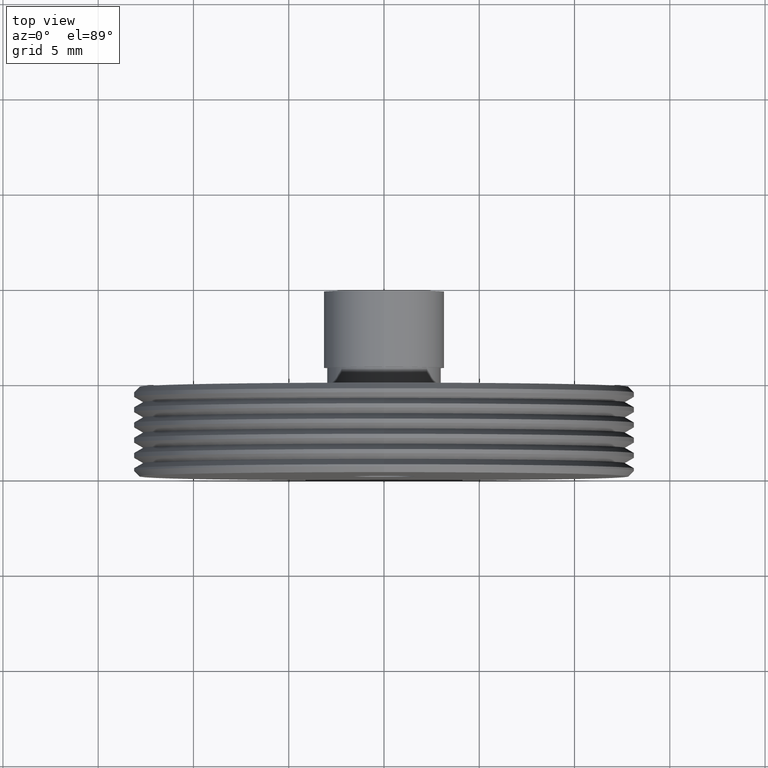
[diagram: clean part render]
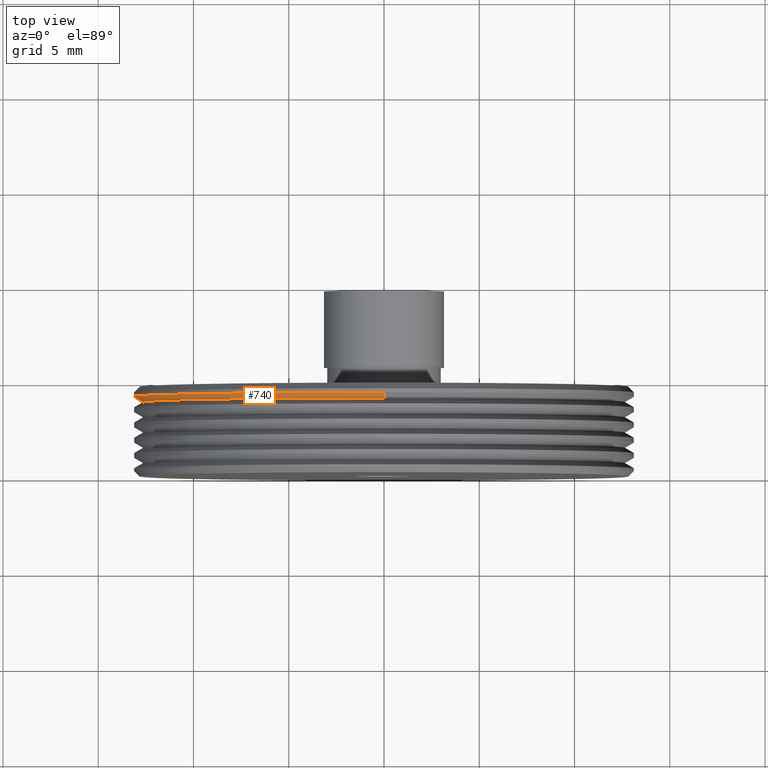
[diagram: same view with one face highlighted and labeled with its STEP entity id]
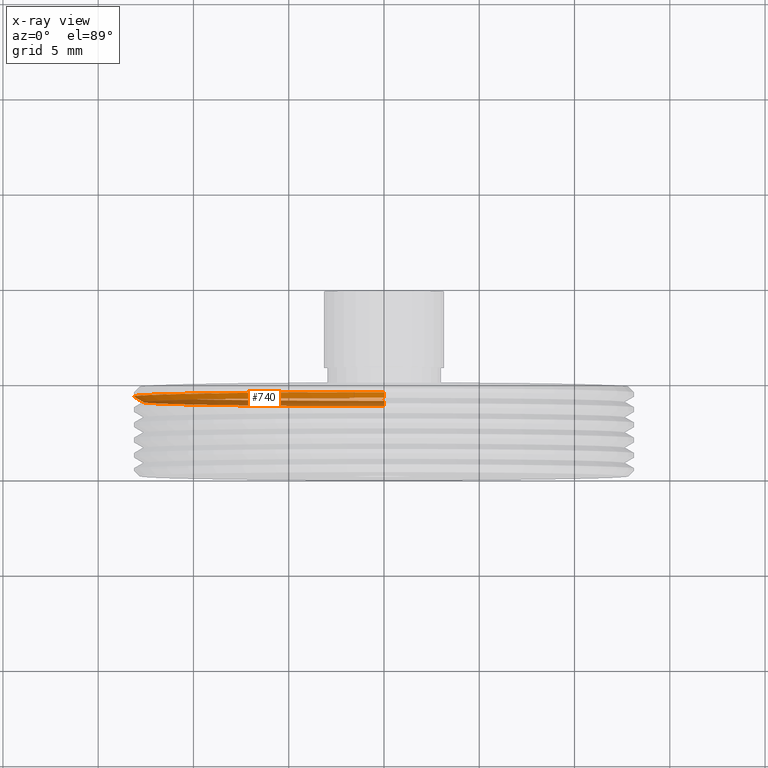
[diagram: x-ray of the same camera — body ghosted, the highlighted face saturated]
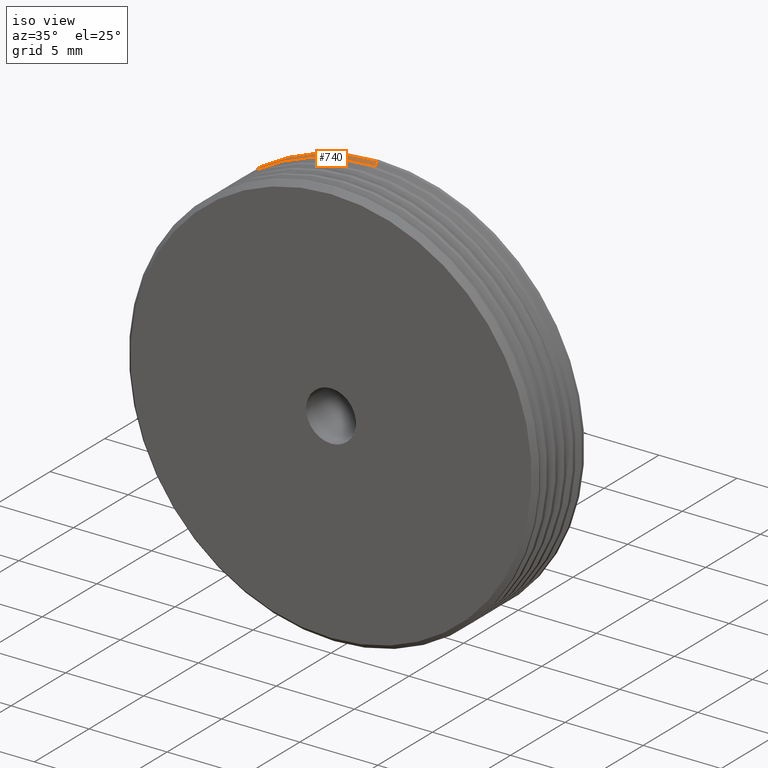
[diagram: same view with one face highlighted and labeled with its STEP entity id]
A machine part, top view. The second image highlights one B-rep face of the part: STEP entity #740.
The next image is the same camera in x-ray: the body ghosted, the highlighted face saturated — about 45% of this face is hidden behind the body in this view.
A second angle (iso view) of the same face is appended — the face is thin or edge-on in the first view.
In plain terms, the highlighted conical surface has half-angle 60 deg.
Its self-contained STEP definition (entity closure, byte-faithful):
#40 = VERTEX_POINT ( 'NONE', #1150 ) ;
#47 = VERTEX_POINT ( 'NONE', #185 ) ;
#71 = VERTEX_POINT ( 'NONE', #672 ) ;
#95 = CIRCLE ( 'NONE', #658, 13.15000000000000568 ) ;
#96 = CARTESIAN_POINT ( 'NONE',  ( 1.732875220793505462E-15, 4.766025403784441394, -14.15000000000000391 ) ) ;
#113 = LINE ( 'NONE', #96, #120 ) ;
#120 = VECTOR ( 'NONE', #394, 1000.000000000000000 ) ;
#155 = DIRECTION ( 'NONE',  ( 0.000000000000000000, -1.000000000000000000, 0.000000000000000000 ) ) ;
#185 = CARTESIAN_POINT ( 'NONE',  ( 0.000000000000000000, 4.188675134594816107, 13.15000000000000568 ) ) ;
#219 = ORIENTED_EDGE ( 'NONE', *, *, #553, .F. ) ;
#243 = DIRECTION ( 'NONE',  ( 0.000000000000000000, 0.4999999999999998890, 0.8660254037844387076 ) ) ;
#255 = CARTESIAN_POINT ( 'NONE',  ( 0.000000000000000000, 3.900000000000000799, 0.000000000000000000 ) ) ;
#266 = LINE ( 'NONE', #729, #1087 ) ;
#291 = EDGE_LOOP ( 'NONE', ( #219, #341, #854, #1009 ) ) ;
#311 = CARTESIAN_POINT ( 'NONE',  ( 0.000000000000000000, 3.900000000000000799, 12.65000000000000036 ) ) ;
#335 = AXIS2_PLACEMENT_3D ( 'NONE', #540, #896, #933 ) ;
#341 = ORIENTED_EDGE ( 'NONE', *, *, #1242, .T. ) ;
#347 = DIRECTION ( 'NONE',  ( 0.000000000000000000, 0.000000000000000000, 1.000000000000000000 ) ) ;
#394 = DIRECTION ( 'NONE',  ( 1.060575238724906915E-16, 0.4999999999999998890, -0.8660254037844387076 ) ) ;
#439 = DIRECTION ( 'NONE',  ( 0.000000000000000000, 0.000000000000000000, 1.000000000000000000 ) ) ;
#538 = DIRECTION ( 'NONE',  ( -0.000000000000000000, 1.000000000000000000, -0.000000000000000000 ) ) ;
#540 = CARTESIAN_POINT ( 'NONE',  ( 0.000000000000000000, 4.766025403784441394, 0.000000000000000000 ) ) ;
#553 = EDGE_CURVE ( 'NONE', #40, #71, #113, .T. ) ;
#633 = FACE_OUTER_BOUND ( 'NONE', #291, .T. ) ;
#658 = AXIS2_PLACEMENT_3D ( 'NONE', #1124, #155, #439 ) ;
#672 = CARTESIAN_POINT ( 'NONE',  ( 1.610410540878770117E-15, 4.188675134594816107, -13.15000000000000568 ) ) ;
#688 = EDGE_CURVE ( 'NONE', #47, #71, #95, .T. ) ;
#729 = CARTESIAN_POINT ( 'NONE',  ( 0.000000000000000000, 4.766025403784441394, 14.15000000000000391 ) ) ;
#732 = EDGE_CURVE ( 'NONE', #958, #47, #266, .T. ) ;
#740 = ADVANCED_FACE ( 'NONE', ( #633 ), #983, .T. ) ;
#818 = CIRCLE ( 'NONE', #1126, 12.65000000000000036 ) ;
#854 = ORIENTED_EDGE ( 'NONE', *, *, #732, .T. ) ;
#896 = DIRECTION ( 'NONE',  ( -0.000000000000000000, 1.000000000000000000, -0.000000000000000000 ) ) ;
#933 = DIRECTION ( 'NONE',  ( 0.000000000000000000, 0.000000000000000000, 1.000000000000000000 ) ) ;
#958 = VERTEX_POINT ( 'NONE', #311 ) ;
#983 = CONICAL_SURFACE ( 'NONE', #335, 14.15000000000000391, 1.047197551196597853 ) ;
#1009 = ORIENTED_EDGE ( 'NONE', *, *, #688, .T. ) ;
#1087 = VECTOR ( 'NONE', #243, 1000.000000000000000 ) ;
#1124 = CARTESIAN_POINT ( 'NONE',  ( 0.000000000000000000, 4.188675134594816107, 0.000000000000000000 ) ) ;
#1126 = AXIS2_PLACEMENT_3D ( 'NONE', #255, #538, #347 ) ;
#1150 = CARTESIAN_POINT ( 'NONE',  ( 1.579794370900085936E-15, 3.900000000000000799, -12.65000000000000036 ) ) ;
#1242 = EDGE_CURVE ( 'NONE', #40, #958, #818, .T. ) ;